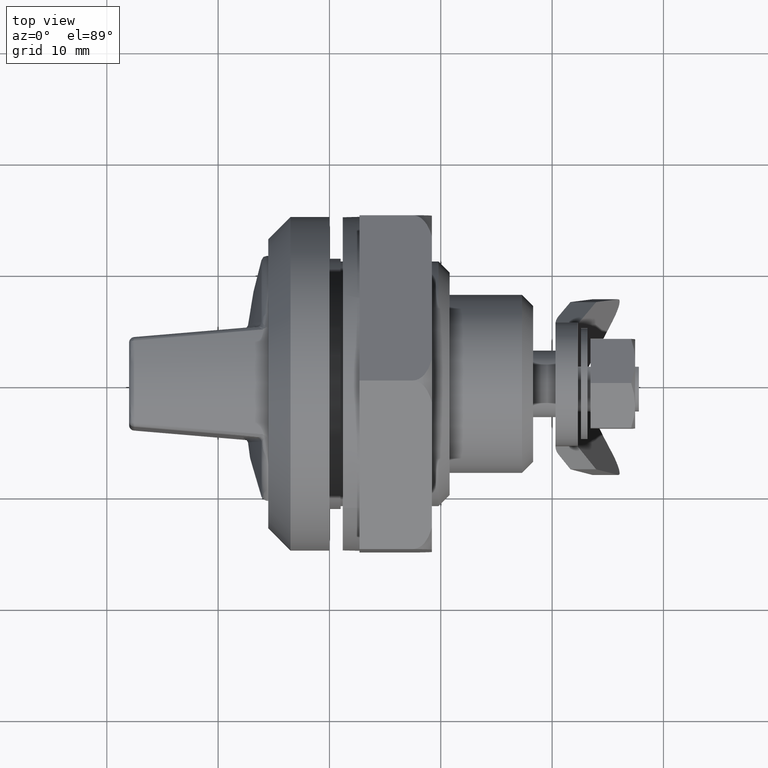
[diagram: clean part render]
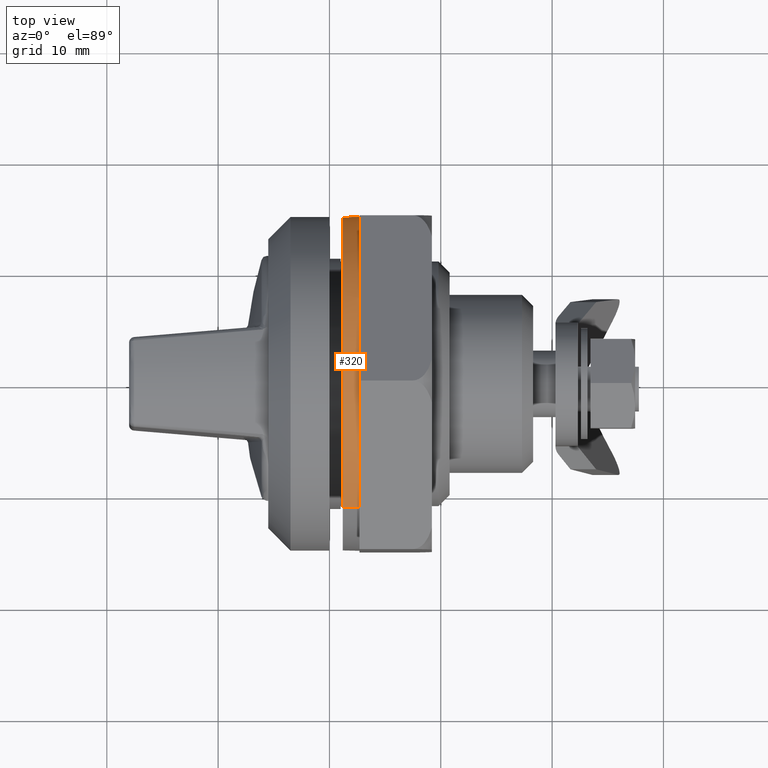
[diagram: same view with one face highlighted and labeled with its STEP entity id]
A machine part, top view. The second image highlights one B-rep face of the part: STEP entity #320.
In plain terms, the highlighted face is a freeform B-spline surface patch.
Its self-contained STEP definition (entity closure, byte-faithful):
#88=CARTESIAN_POINT('',(1.200000000000086,-11.300145437119619,9.864416510870406));
#89=VERTEX_POINT('',#88);
#105=CARTESIAN_POINT('',(1.200000000000051,11.300145404523080,-9.864416548211263));
#106=VERTEX_POINT('',#105);
#120=CARTESIAN_POINT('',(2.700000000000031,11.300141405489290,-9.864421129286733));
#121=VERTEX_POINT('',#120);
#122=CARTESIAN_POINT('',(2.700000000000031,11.300141405489290,-9.864421129286733));
#123=CARTESIAN_POINT('',(1.200000000000051,11.300145404523080,-9.864416548211263));
#124=QUASI_UNIFORM_CURVE('',1,(#122,#123),.UNSPECIFIED.,.F.,.U.);
#125=EDGE_CURVE('',#121,#106,#124,.T.);
#166=CARTESIAN_POINT('',(2.700000000000031,-11.300144014818800,9.864418140181712));
#167=VERTEX_POINT('',#166);
#181=CARTESIAN_POINT('',(2.700000000000031,-11.300144014818800,9.864418140181712));
#182=CARTESIAN_POINT('',(1.200000000000086,-11.300145437119619,9.864416510870406));
#183=QUASI_UNIFORM_CURVE('',1,(#181,#182),.UNSPECIFIED.,.F.,.U.);
#184=EDGE_CURVE('',#167,#89,#183,.T.);
#189=CARTESIAN_POINT('',(2.737500000000035,-11.300144294523429,9.864417819767198));
#190=CARTESIAN_POINT('',(2.737500000000035,-8.154104410090493,13.468351199310209));
#191=CARTESIAN_POINT('',(2.737500000000035,-3.644658145156714,15.734071837083750));
#192=CARTESIAN_POINT('',(2.737500000000035,1.486362613632099,16.082141516302048));
#193=CARTESIAN_POINT('',(2.737500000000035,6.260484440224182,14.446184178956360));
#194=CARTESIAN_POINT('',(2.737500000000035,13.468351199310209,8.154104410090493));
#195=CARTESIAN_POINT('',(2.737500000000035,15.734071837083750,3.644658145156714));
#196=CARTESIAN_POINT('',(2.737500000000035,16.082141516302048,-1.486362613632099));
#197=CARTESIAN_POINT('',(2.737500000000035,14.446184178956360,-6.260484440224182));
#198=CARTESIAN_POINT('',(2.737500000000035,11.300144294523429,-9.864417819767198));
#199=CARTESIAN_POINT('',(1.161562500000091,-11.300144294523429,9.864417819767198));
#200=CARTESIAN_POINT('',(1.161562500000091,-8.154104410090493,13.468351199310209));
#201=CARTESIAN_POINT('',(1.161562500000091,-3.644658145156714,15.734071837083750));
#202=CARTESIAN_POINT('',(1.161562500000091,1.486362613632099,16.082141516302048));
#203=CARTESIAN_POINT('',(1.161562500000091,6.260484440224182,14.446184178956360));
#204=CARTESIAN_POINT('',(1.161562500000091,13.468351199310209,8.154104410090493));
#205=CARTESIAN_POINT('',(1.161562500000091,15.734071837083750,3.644658145156714));
#206=CARTESIAN_POINT('',(1.161562500000091,16.082141516302048,-1.486362613632099));
#207=CARTESIAN_POINT('',(1.161562500000091,14.446184178956360,-6.260484440224182));
#208=CARTESIAN_POINT('',(1.161562500000091,11.300144294523429,-9.864417819767198));
#209=B_SPLINE_SURFACE_WITH_KNOTS('',5,1,((#189,#199),(#190,#200),(#191,#201),(#192,#202),(#193,#203),(#194,#204),(#195,#205),(#196,#206),(#197,#207),(#198,#208)),.UNSPECIFIED.,.F.,.F.,.U.,(6,4,6),(2,2),(0.0,23.919606371461839,47.839212742923692),(0.0,1.0),.UNSPECIFIED.);
#210=CARTESIAN_POINT('',(1.200000000000090,0.0,14.999999999999700));
#211=VERTEX_POINT('',#210);
#212=CARTESIAN_POINT('',(1.200000000000087,-11.300145437119616,9.864416510870406));
#213=CARTESIAN_POINT('',(1.200000000000090,-6.817058485273099,14.999999999999705));
#214=CARTESIAN_POINT('',(1.200000000000090,0.0,14.999999999999700));
#222=(BOUNDED_CURVE()B_SPLINE_CURVE(2,(#212,#213,#214),.UNSPECIFIED.,.F.,.U.)B_SPLINE_CURVE_WITH_KNOTS((3,3),(0.864776017522786,1.0),.UNSPECIFIED.)CURVE()GEOMETRIC_REPRESENTATION_ITEM()RATIONAL_B_SPLINE_CURVE((0.854533104985801,0.841575250045899,1.0))REPRESENTATION_ITEM(''));
#223=EDGE_CURVE('',#89,#211,#222,.T.);
#224=ORIENTED_EDGE('',*,*,#223,.F.);
#225=ORIENTED_EDGE('',*,*,#184,.F.);
#226=CARTESIAN_POINT('',(2.700000000000000,-7.585839698639791,12.940441880651960));
#227=VERTEX_POINT('',#226);
#228=CARTESIAN_POINT('',(2.700000000000031,-11.300144014818814,9.864418140181725));
#229=CARTESIAN_POINT('',(2.700000000000035,-9.693493027213565,11.704910633858127));
#230=CARTESIAN_POINT('',(2.700000000000035,-7.585839698639804,12.940441880651971));
#238=(BOUNDED_CURVE()B_SPLINE_CURVE(2,(#228,#229,#230),.UNSPECIFIED.,.F.,.U.)B_SPLINE_CURVE_WITH_KNOTS((3,3),(0.685986403003346,1.0),.UNSPECIFIED.)CURVE()GEOMETRIC_REPRESENTATION_ITEM()RATIONAL_B_SPLINE_CURVE((0.942992344776279,0.958448407305062,1.0))REPRESENTATION_ITEM(''));
#239=EDGE_CURVE('',#167,#227,#238,.T.);
#240=ORIENTED_EDGE('',*,*,#239,.T.);
#241=CARTESIAN_POINT('',(2.700000000000035,-7.413500291680060,13.039939164936721));
#242=VERTEX_POINT('',#241);
#243=CARTESIAN_POINT('',(2.700000000000000,-7.585839698639791,12.940441880651960));
#244=CARTESIAN_POINT('',(2.700000000000036,-7.528614072228257,12.973988217988509));
#245=CARTESIAN_POINT('',(2.700000000000036,-7.471165918090886,13.007154952310479));
#246=CARTESIAN_POINT('',(2.700000000000036,-7.413500291680021,13.039939164936751));
#247=QUASI_UNIFORM_CURVE('',3,(#243,#244,#245,#246),.UNSPECIFIED.,.F.,.U.);
#248=EDGE_CURVE('',#227,#242,#247,.T.);
#249=ORIENTED_EDGE('',*,*,#248,.T.);
#250=CARTESIAN_POINT('',(2.700000000000000,7.413500291676390,13.039939164938801));
#251=VERTEX_POINT('',#250);
#252=CARTESIAN_POINT('',(2.700000000000035,-7.413500291680068,13.039939164936721));
#253=CARTESIAN_POINT('',(2.700000000000035,-2.432950E-012,17.254681724664689));
#254=CARTESIAN_POINT('',(2.700000000000035,7.413500291676390,13.039939164938810));
#262=(BOUNDED_CURVE()B_SPLINE_CURVE(2,(#252,#253,#254),.UNSPECIFIED.,.F.,.U.)CURVE()GEOMETRIC_REPRESENTATION_ITEM()QUASI_UNIFORM_CURVE()RATIONAL_B_SPLINE_CURVE((1.0,0.869329277662535,1.0))REPRESENTATION_ITEM(''));
#263=EDGE_CURVE('',#242,#251,#262,.T.);
#264=ORIENTED_EDGE('',*,*,#263,.T.);
#265=CARTESIAN_POINT('',(2.700000000000000,7.585839698643441,12.940441880649820));
#266=VERTEX_POINT('',#265);
#267=CARTESIAN_POINT('',(2.700000000000000,7.413500291676390,13.039939164938801));
#268=CARTESIAN_POINT('',(2.700000000000036,7.471165918089713,13.007154952311170));
#269=CARTESIAN_POINT('',(2.700000000000036,7.528614072229530,12.973988217987779));
#270=CARTESIAN_POINT('',(2.700000000000036,7.585839698643444,12.940441880649830));
#271=QUASI_UNIFORM_CURVE('',3,(#267,#268,#269,#270),.UNSPECIFIED.,.F.,.U.);
#272=EDGE_CURVE('',#251,#266,#271,.T.);
#273=ORIENTED_EDGE('',*,*,#272,.T.);
#274=CARTESIAN_POINT('',(2.700000000000000,15.0,0.0));
#275=VERTEX_POINT('',#274);
#276=CARTESIAN_POINT('',(2.700000000000000,7.585839698643441,12.940441880649820));
#277=CARTESIAN_POINT('',(2.700000000000018,14.999999999999847,8.594173641523039));
#278=CARTESIAN_POINT('',(2.700000000000000,15.0,0.0));
#286=(BOUNDED_CURVE()B_SPLINE_CURVE(2,(#276,#277,#278),.UNSPECIFIED.,.F.,.U.)CURVE()GEOMETRIC_REPRESENTATION_ITEM()QUASI_UNIFORM_CURVE()RATIONAL_B_SPLINE_CURVE((1.0,0.867675816931716,1.0))REPRESENTATION_ITEM(''));
#287=EDGE_CURVE('',#266,#275,#286,.T.);
#288=ORIENTED_EDGE('',*,*,#287,.T.);
#289=CARTESIAN_POINT('',(2.700000000000000,15.0,0.0));
#290=CARTESIAN_POINT('',(2.700000000000024,14.999999999999552,-5.626065451815967));
#291=CARTESIAN_POINT('',(2.700000000000031,11.300141405489292,-9.864421129286733));
#299=(BOUNDED_CURVE()B_SPLINE_CURVE(2,(#289,#290,#291),.UNSPECIFIED.,.F.,.U.)B_SPLINE_CURVE_WITH_KNOTS((3,3),(0.0,0.341523159738026),.UNSPECIFIED.)CURVE()GEOMETRIC_REPRESENTATION_ITEM()RATIONAL_B_SPLINE_CURVE((1.0,0.908856664358336,0.942223568626290))REPRESENTATION_ITEM(''));
#300=EDGE_CURVE('',#275,#121,#299,.T.);
#301=ORIENTED_EDGE('',*,*,#300,.T.);
#302=ORIENTED_EDGE('',*,*,#125,.T.);
#303=CARTESIAN_POINT('',(1.200000000000090,0.0,14.999999999999700));
#304=CARTESIAN_POINT('',(1.200000000000090,14.999999999999700,14.999999999999700));
#305=CARTESIAN_POINT('',(1.200000000000090,14.999999999999700,0.0));
#306=CARTESIAN_POINT('',(1.200000000000089,14.999999999999703,-5.626061983585883));
#307=CARTESIAN_POINT('',(1.200000000000090,11.300145404523146,-9.864416548211327));
#315=(BOUNDED_CURVE()B_SPLINE_CURVE(2,(#303,#304,#305,#306,#307),.UNSPECIFIED.,.F.,.U.)B_SPLINE_CURVE_WITH_KNOTS((3,2,3),(0.0,0.250000000000000,0.364776018021962),.UNSPECIFIED.)CURVE()GEOMETRIC_REPRESENTATION_ITEM()RATIONAL_B_SPLINE_CURVE((1.0,0.707106781186547,1.0,0.865531530555826,0.854533104890134))REPRESENTATION_ITEM(''));
#316=EDGE_CURVE('',#211,#106,#315,.T.);
#317=ORIENTED_EDGE('',*,*,#316,.F.);
#318=EDGE_LOOP('',(#224,#225,#240,#249,#264,#273,#288,#301,#302,#317));
#319=FACE_OUTER_BOUND('',#318,.T.);
#320=ADVANCED_FACE('',(#319),#209,.T.);